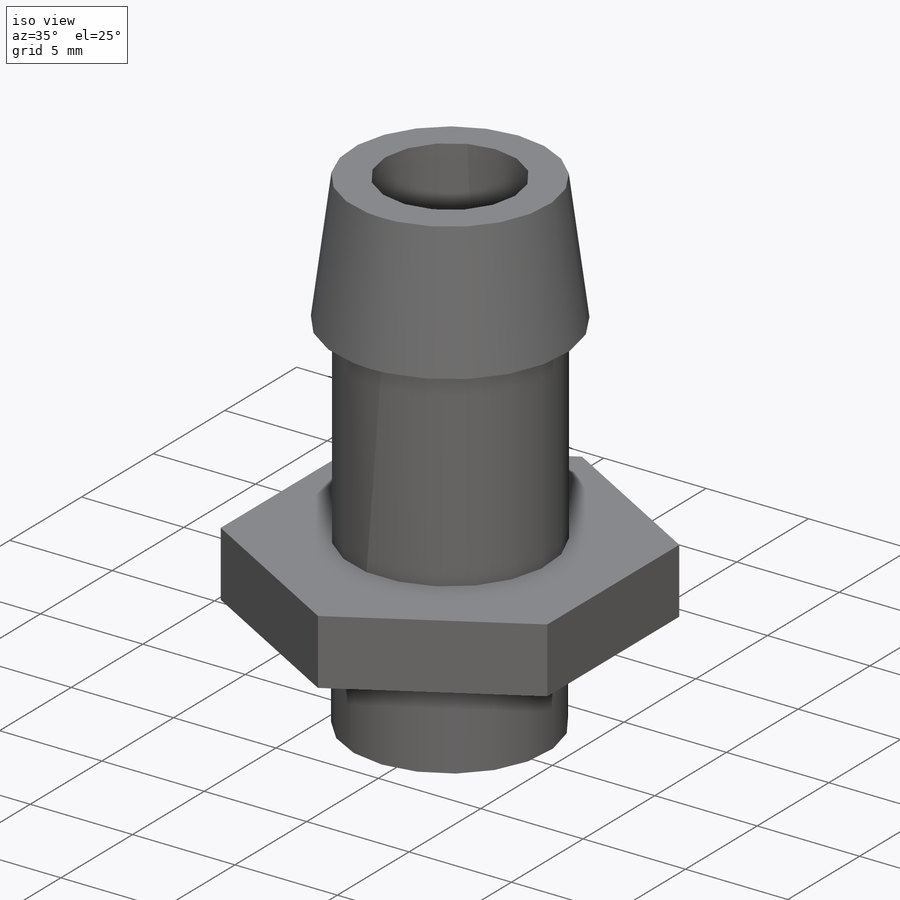
[diagram: iso view]
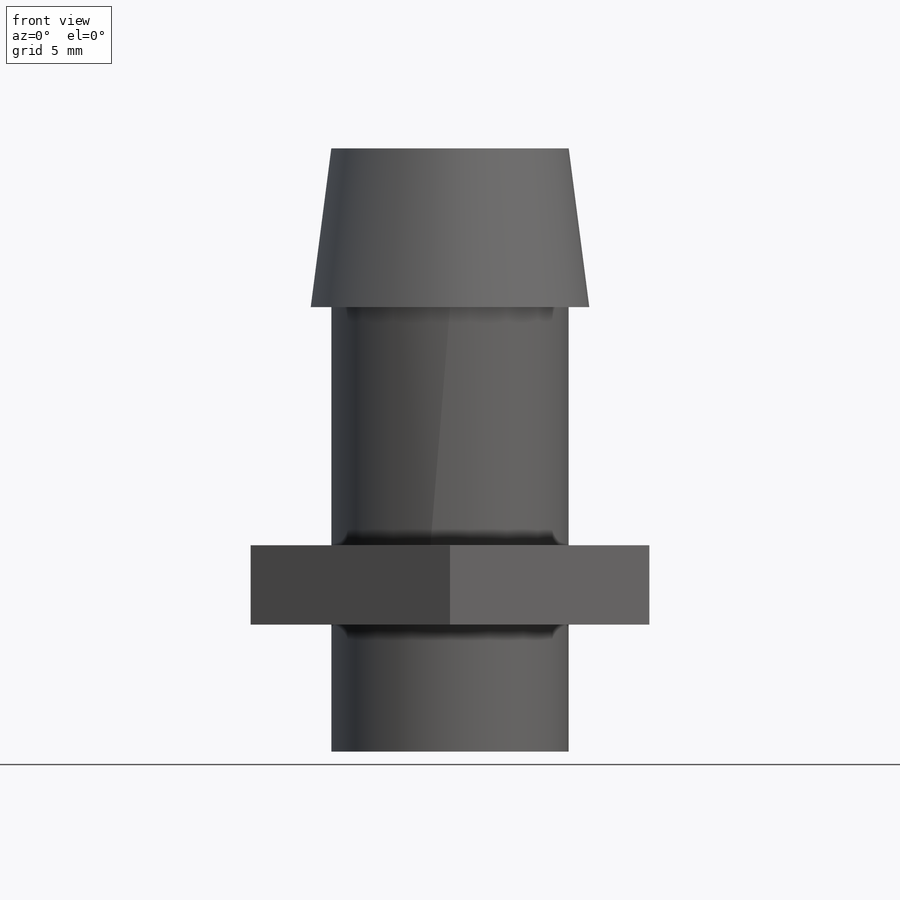
[diagram: front view]
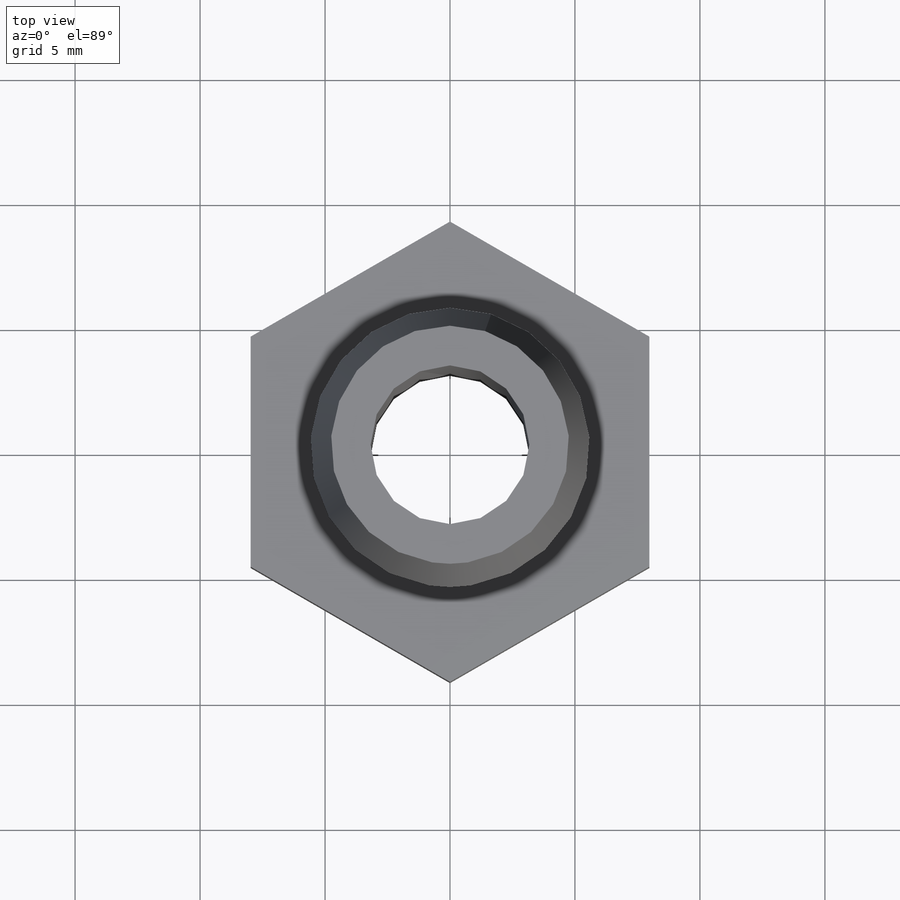
[diagram: top view]
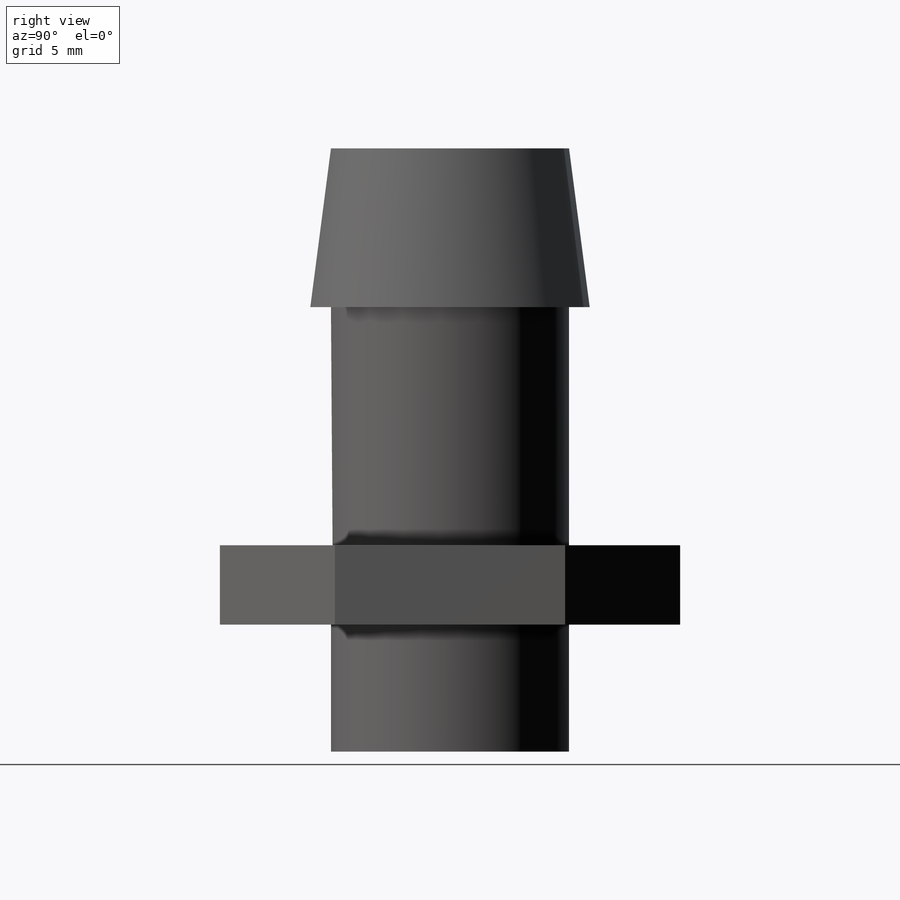
[diagram: right view]
SOLIDWORKS PART (.sldprt)
format: sldprt  version: not decoded by parser v0  size: 156,160 bytes
history: native  units: mm
features: sketch x6, extrude x4, material x1, cut_extrude x1, cut_revolve x1 (+11 scaffold rows collapsed)
feature tree (24):
  scaffold x11  (default folders/planes/origin — collapsed)
  material  "1060 Alloy"
  sketch  "Sketch1"  dims[D1=~2.761512mm]
  extrude  "Extrude1"  Depth=15.875mm
  sketch  "Sketch2"  dims[D1=9.2075mm D2=9.2075mm D3=9.2075mm]
  extrude  "Extrude2"  Depth=3.175mm
  sketch  "Sketch3"  dims[D1=~5.005803mm]
  extrude  "Extrude3"  Depth=5.08mm
  sketch  "Sketch4"  dims[D1=~5.970452mm]
  cut_extrude  "Cut-Extrude1"  Depth=1.5875mm
  sketch  "Sketch5"  dims[D1=5.715mm]
  extrude  "Extrude4"  Depth=6.35mm
  sketch  "Sketch7"  dims[D1=0.8255mm]
  cut_revolve  "Cut-Revolve1"  Angle=360deg
decode coverage: 12 of 12 modeling features carry decoded parameters
note: ~ marks probable driven/reference dimensions
note: suppression state not decoded; provenance and decode notes live in map.json
